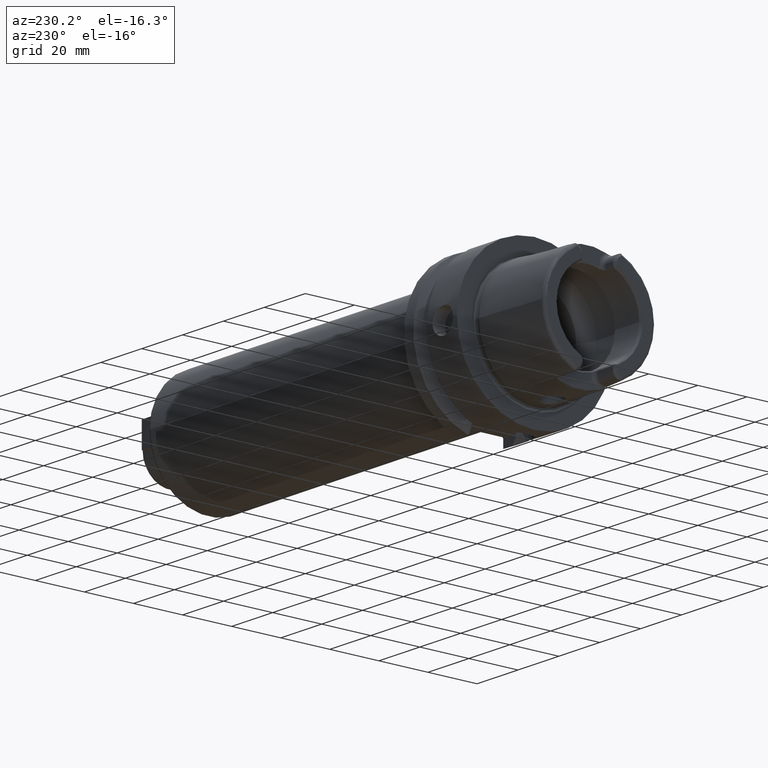
[diagram: clean part render]
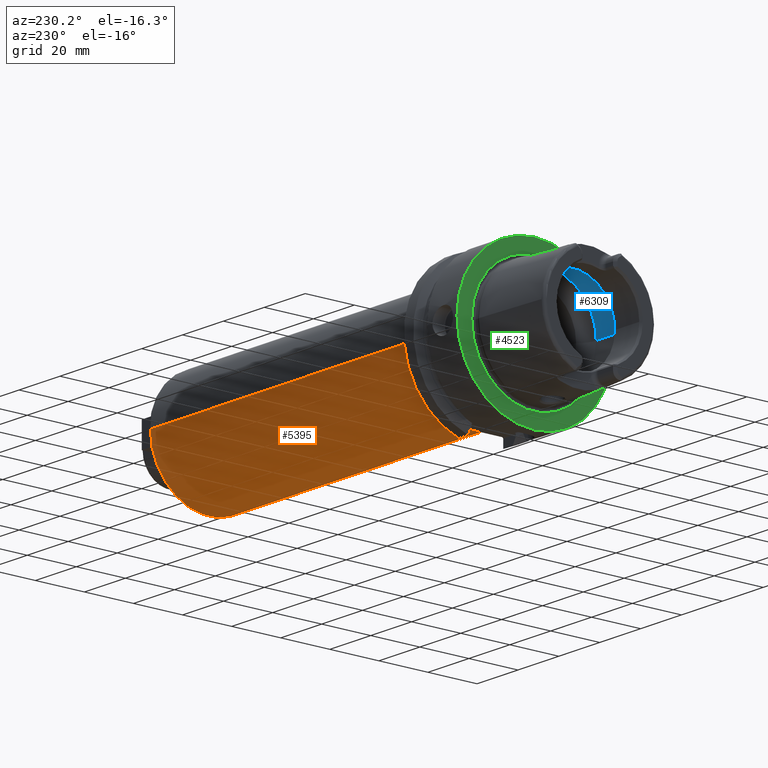
[diagram: same view with three faces highlighted in distinct colors, each labeled with its STEP entity id]
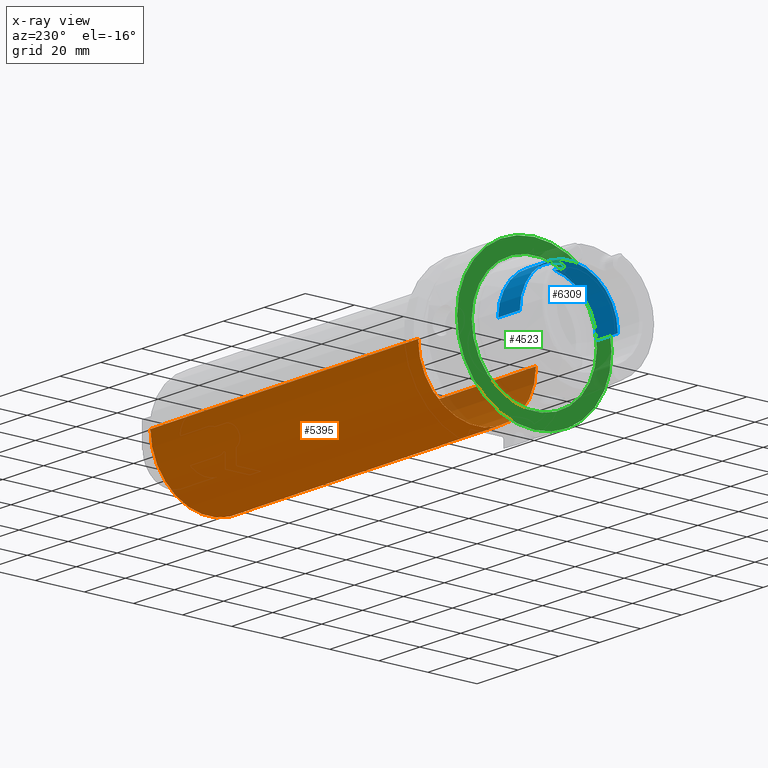
[diagram: x-ray of the same camera — body ghosted, the three highlighted faces saturated]
A machine part, auxiliary view with three faces highlighted in distinct colors.
The next image is the same camera in x-ray (body ghosted, the three faces saturated) — at least one of them is partly hidden behind the body in this view.
Their STEP definitions:

[orange] entity #5395 — the highlighted cylindrical surface (partial cylindrical patch) has radius 24 mm, axis along (1, 0, 0).
#1976=DIRECTION('',(-1.E0,0.E0,0.E0));
#1977=VECTOR('',#1976,1.31E2);
#1978=CARTESIAN_POINT('',(1.59E2,2.4E1,-7.702666112897E-14));
#1979=LINE('',#1978,#1977);
#1980=CARTESIAN_POINT('',(2.8E1,0.E0,0.E0));
#1981=DIRECTION('',(1.E0,0.E0,0.E0));
#1982=DIRECTION('',(0.E0,-1.E0,0.E0));
#1983=AXIS2_PLACEMENT_3D('',#1980,#1981,#1982);
#1985=DIRECTION('',(-1.E0,0.E0,0.E0));
#1986=VECTOR('',#1985,1.31E2);
#1987=CARTESIAN_POINT('',(1.59E2,-2.4E1,7.629255920826E-14));
#1988=LINE('',#1987,#1986);
#1989=CARTESIAN_POINT('',(1.59E2,0.E0,0.E0));
#1990=DIRECTION('',(-1.E0,0.E0,0.E0));
#1991=DIRECTION('',(0.E0,1.E0,0.E0));
#1992=AXIS2_PLACEMENT_3D('',#1989,#1990,#1991);
#3194=CARTESIAN_POINT('',(2.8E1,-2.4E1,0.E0));
#3195=CARTESIAN_POINT('',(2.8E1,2.4E1,0.E0));
#3196=VERTEX_POINT('',#3194);
#3197=VERTEX_POINT('',#3195);
#3198=CARTESIAN_POINT('',(1.59E2,2.4E1,-7.702666112897E-14));
#3199=VERTEX_POINT('',#3198);
#3200=CARTESIAN_POINT('',(1.59E2,-2.4E1,7.629255920826E-14));
#3201=VERTEX_POINT('',#3200);
#5383=CARTESIAN_POINT('',(1.835E1,0.E0,0.E0));
#5384=DIRECTION('',(1.E0,0.E0,0.E0));
#5385=DIRECTION('',(0.E0,-1.E0,0.E0));
#5386=AXIS2_PLACEMENT_3D('',#5383,#5384,#5385);
#5387=CYLINDRICAL_SURFACE('',#5386,2.4E1);
#5388=ORIENTED_EDGE('',*,*,#5373,.T.);
#5389=ORIENTED_EDGE('',*,*,#5348,.F.);
#5390=ORIENTED_EDGE('',*,*,#5377,.F.);
#5392=ORIENTED_EDGE('',*,*,#5391,.F.);
#5393=EDGE_LOOP('',(#5388,#5389,#5390,#5392));
#5394=FACE_OUTER_BOUND('',#5393,.F.);
#5395=ADVANCED_FACE('',(#5394),#5387,.T.);
#1984=CIRCLE('',#1983,2.4E1);
#1993=CIRCLE('',#1992,2.4E1);
#5348=EDGE_CURVE('',#3196,#3197,#1984,.T.);
#5373=EDGE_CURVE('',#3199,#3197,#1979,.T.);
#5377=EDGE_CURVE('',#3201,#3196,#1988,.T.);
#5391=EDGE_CURVE('',#3199,#3201,#1993,.T.);

[blue] entity #6309 — the highlighted cylindrical surface (partial cylindrical patch) has radius 20 mm, axis along (1, 0, 0).
#2372=CARTESIAN_POINT('',(-6.344997998398E0,2.648294615690E0,1.982388800484E1));
#2374=CARTESIAN_POINT('',(-6.344997998398E0,-2.648294615690E0,
1.982388800484E1));
#2389=CARTESIAN_POINT('',(-6.344997998398E0,2.648294615690E0,1.982388800484E1));
#2390=CARTESIAN_POINT('',(-6.460596585787E0,2.764185981810E0,1.980840595204E1));
#2391=CARTESIAN_POINT('',(-6.705032526468E0,2.979236620594E0,1.977762997767E1));
#2392=CARTESIAN_POINT('',(-7.115707088008E0,3.254820950558E0,1.973390915713E1));
#2393=CARTESIAN_POINT('',(-7.558788067840E0,3.473550756710E0,1.969635481023E1));
#2394=CARTESIAN_POINT('',(-8.021221245910E0,3.630990626018E0,1.966777323779E1));
#2395=CARTESIAN_POINT('',(-8.506803393416E0,3.728808889512E0,1.964936004927E1));
#2396=CARTESIAN_POINT('',(-9.030555145845E0,3.763361449459E0,1.964272649975E1));
#2397=CARTESIAN_POINT('',(-9.606429583869E0,3.716513314942E0,1.965172145674E1));
#2398=CARTESIAN_POINT('',(-1.018737071400E1,3.573599882894E0,1.967844261791E1));
#2399=CARTESIAN_POINT('',(-1.073043578591E1,3.344031986540E0,1.971908086237E1));
#2400=CARTESIAN_POINT('',(-1.122924164708E1,3.034476069484E0,1.976949853857E1));
#2401=CARTESIAN_POINT('',(-1.167539523054E1,2.649612593318E0,1.982521182701E1));
#2402=CARTESIAN_POINT('',(-1.205589435788E1,2.199789113726E0,1.988058991308E1));
#2403=CARTESIAN_POINT('',(-1.236037157112E1,1.698335126266E0,1.993006117584E1));
#2404=CARTESIAN_POINT('',(-1.258308722480E1,1.156984185320E0,1.996912477874E1));
#2405=CARTESIAN_POINT('',(-1.271933931783E1,5.855799559107E-1,
1.999421727083E1));
#2406=CARTESIAN_POINT('',(-1.275E1,1.970790591689E-1,2.E1));
#2407=CARTESIAN_POINT('',(-1.275E1,0.E0,2.E1));
#2409=CARTESIAN_POINT('',(-6.344997998398E0,0.E0,0.E0));
#2410=DIRECTION('',(1.E0,0.E0,0.E0));
#2411=DIRECTION('',(0.E0,1.E0,0.E0));
#2412=AXIS2_PLACEMENT_3D('',#2409,#2410,#2411);
#2414=CARTESIAN_POINT('',(-6.344997998398E0,0.E0,0.E0));
#2415=DIRECTION('',(1.E0,0.E0,0.E0));
#2416=DIRECTION('',(0.E0,-1.324147307845E-1,9.911944002421E-1));
#2417=AXIS2_PLACEMENT_3D('',#2414,#2415,#2416);
#2419=CARTESIAN_POINT('',(-1.275E1,0.E0,2.E1));
#2420=CARTESIAN_POINT('',(-1.275E1,-1.955242925513E-1,2.E1));
#2421=CARTESIAN_POINT('',(-1.271982051521E1,-5.810761079055E-1,
1.999430841785E1));
#2422=CARTESIAN_POINT('',(-1.258557303883E1,-1.148512219472E0,
1.996957850985E1));
#2423=CARTESIAN_POINT('',(-1.236610647030E1,-1.686465533352E0,
1.993104432949E1));
#2424=CARTESIAN_POINT('',(-1.206568486343E1,-2.185767805005E0,
1.988212273505E1));
#2425=CARTESIAN_POINT('',(-1.169008850873E1,-2.634407568635E0,
1.982723415069E1));
#2426=CARTESIAN_POINT('',(-1.124927195009E1,-3.019358385751E0,
1.977181562270E1));
#2427=CARTESIAN_POINT('',(-1.075709032709E1,-3.329824405020E0,
1.972149412598E1));
#2428=CARTESIAN_POINT('',(-1.021949126442E1,-3.562609701439E0,
1.968045031109E1));
#2429=CARTESIAN_POINT('',(-9.641467361370E0,-3.710631949485E0,
1.965284251435E1));
#2430=CARTESIAN_POINT('',(-9.064366496245E0,-3.763073985501E0,
1.964278184632E1));
#2431=CARTESIAN_POINT('',(-8.536701772833E0,-3.732854425270E0,
1.964858745769E1));
#2432=CARTESIAN_POINT('',(-8.044881233754E0,-3.637565201588E0,
1.966655458906E1));
#2433=CARTESIAN_POINT('',(-7.575563176507E0,-3.480761658208E0,
1.969508217317E1));
#2434=CARTESIAN_POINT('',(-7.126022383363E0,-3.261082066667E0,
1.973288259674E1));
#2435=CARTESIAN_POINT('',(-6.709667549471E0,-2.983130387452E0,
1.977705858332E1));
#2436=CARTESIAN_POINT('',(-6.462043566692E0,-2.765636627510E0,
1.980821215871E1));
#2437=CARTESIAN_POINT('',(-6.344997998398E0,-2.648294615690E0,
1.982388800484E1));
#2484=DIRECTION('',(-1.E0,0.E0,0.E0));
#2485=VECTOR('',#2484,1.057256643630E1);
#2486=CARTESIAN_POINT('',(-6.344997998398E0,-2.E1,0.E0));
#2487=LINE('',#2486,#2485);
#2488=DIRECTION('',(-1.E0,0.E0,0.E0));
#2489=VECTOR('',#2488,1.057256643630E1);
#2490=CARTESIAN_POINT('',(-6.344997998398E0,2.E1,0.E0));
#2491=LINE('',#2490,#2489);
#2723=CARTESIAN_POINT('',(-1.691756443470E1,0.E0,0.E0));
#2724=DIRECTION('',(1.E0,0.E0,0.E0));
#2725=DIRECTION('',(0.E0,1.E0,0.E0));
#2726=AXIS2_PLACEMENT_3D('',#2723,#2724,#2725);
#2788=CARTESIAN_POINT('',(-6.344997998398E0,2.E1,0.E0));
#2789=VERTEX_POINT('',#2788);
#2790=CARTESIAN_POINT('',(-1.691756443470E1,2.E1,0.E0));
#2791=VERTEX_POINT('',#2790);
#2800=CARTESIAN_POINT('',(-6.344997998398E0,-2.E1,0.E0));
#2801=VERTEX_POINT('',#2800);
#2802=CARTESIAN_POINT('',(-1.691756443470E1,-2.E1,0.E0));
#2803=VERTEX_POINT('',#2802);
#2970=VERTEX_POINT('',#2372);
#2971=VERTEX_POINT('',#2374);
#2972=VERTEX_POINT('',#2407);
#6292=CARTESIAN_POINT('',(-3.41E1,0.E0,0.E0));
#6293=DIRECTION('',(1.E0,0.E0,0.E0));
#6294=DIRECTION('',(0.E0,-1.E0,0.E0));
#6295=AXIS2_PLACEMENT_3D('',#6292,#6293,#6294);
#6296=CYLINDRICAL_SURFACE('',#6295,2.E1);
#6297=ORIENTED_EDGE('',*,*,#6251,.F.);
#6298=ORIENTED_EDGE('',*,*,#6287,.F.);
#6300=ORIENTED_EDGE('',*,*,#6299,.T.);
#6302=ORIENTED_EDGE('',*,*,#6301,.T.);
#6304=ORIENTED_EDGE('',*,*,#6303,.F.);
#6305=ORIENTED_EDGE('',*,*,#6279,.F.);
#6306=ORIENTED_EDGE('',*,*,#6013,.F.);
#6307=EDGE_LOOP('',(#6297,#6298,#6300,#6302,#6304,#6305,#6306));
#6308=FACE_OUTER_BOUND('',#6307,.F.);
#6309=ADVANCED_FACE('',(#6308),#6296,.F.);
#2408=B_SPLINE_CURVE_WITH_KNOTS('',3,(#2389,#2390,#2391,#2392,#2393,#2394,#2395,
#2396,#2397,#2398,#2399,#2400,#2401,#2402,#2403,#2404,#2405,#2406,#2407),
.UNSPECIFIED.,.F.,.F.,(4,1,1,1,1,1,1,1,1,1,1,1,1,1,1,1,4),(0.E0,6.25E-2,1.25E-1,
1.875E-1,2.5E-1,3.125E-1,3.75E-1,4.375E-1,5.E-1,5.625E-1,6.25E-1,6.875E-1,
7.5E-1,8.125E-1,8.75E-1,9.375E-1,1.E0),.UNSPECIFIED.);
#2413=CIRCLE('',#2412,2.E1);
#2418=CIRCLE('',#2417,2.E1);
#2438=B_SPLINE_CURVE_WITH_KNOTS('',3,(#2419,#2420,#2421,#2422,#2423,#2424,#2425,
#2426,#2427,#2428,#2429,#2430,#2431,#2432,#2433,#2434,#2435,#2436,#2437),
.UNSPECIFIED.,.F.,.F.,(4,1,1,1,1,1,1,1,1,1,1,1,1,1,1,1,4),(0.E0,6.25E-2,1.25E-1,
1.875E-1,2.5E-1,3.125E-1,3.75E-1,4.375E-1,5.E-1,5.625E-1,6.25E-1,6.875E-1,
7.5E-1,8.125E-1,8.75E-1,9.375E-1,1.E0),.UNSPECIFIED.);
#2727=CIRCLE('',#2726,2.E1);
#6013=EDGE_CURVE('',#2972,#2971,#2438,.T.);
#6251=EDGE_CURVE('',#2970,#2972,#2408,.T.);
#6279=EDGE_CURVE('',#2971,#2801,#2418,.T.);
#6287=EDGE_CURVE('',#2789,#2970,#2413,.T.);
#6299=EDGE_CURVE('',#2789,#2791,#2491,.T.);
#6301=EDGE_CURVE('',#2791,#2803,#2727,.T.);
#6303=EDGE_CURVE('',#2801,#2803,#2487,.T.);

[green] entity #4523 — the highlighted planar face has unit normal (1, 0, 0).
#1068=CARTESIAN_POINT('',(-1.421085471520E-14,0.E0,0.E0));
#1069=DIRECTION('',(1.E0,0.E0,0.E0));
#1070=DIRECTION('',(0.E0,1.E0,0.E0));
#1071=AXIS2_PLACEMENT_3D('',#1068,#1069,#1070);
#1073=CARTESIAN_POINT('',(-1.421085471520E-14,0.E0,0.E0));
#1074=DIRECTION('',(-1.E0,0.E0,0.E0));
#1075=DIRECTION('',(0.E0,1.E0,0.E0));
#1076=AXIS2_PLACEMENT_3D('',#1073,#1074,#1075);
#1078=CARTESIAN_POINT('',(0.E0,0.E0,0.E0));
#1079=DIRECTION('',(-1.E0,0.E0,0.E0));
#1080=DIRECTION('',(0.E0,-1.E0,0.E0));
#1081=AXIS2_PLACEMENT_3D('',#1078,#1079,#1080);
#1083=CARTESIAN_POINT('',(0.E0,0.E0,0.E0));
#1084=DIRECTION('',(-1.E0,0.E0,0.E0));
#1085=DIRECTION('',(0.E0,1.E0,0.E0));
#1086=AXIS2_PLACEMENT_3D('',#1083,#1084,#1085);
#2746=CARTESIAN_POINT('',(-1.421085471520E-14,3.15E1,0.E0));
#2747=CARTESIAN_POINT('',(-1.421085471520E-14,-3.15E1,0.E0));
#2748=VERTEX_POINT('',#2746);
#2749=VERTEX_POINT('',#2747);
#2774=CARTESIAN_POINT('',(0.E0,-2.549042414966E1,0.E0));
#2775=VERTEX_POINT('',#2774);
#2776=CARTESIAN_POINT('',(0.E0,2.549042414966E1,0.E0));
#2777=VERTEX_POINT('',#2776);
#4508=CARTESIAN_POINT('',(0.E0,0.E0,0.E0));
#4509=DIRECTION('',(1.E0,0.E0,0.E0));
#4510=DIRECTION('',(0.E0,-1.E0,0.E0));
#4511=AXIS2_PLACEMENT_3D('',#4508,#4509,#4510);
#4512=PLANE('',#4511);
#4514=ORIENTED_EDGE('',*,*,#4513,.T.);
#4516=ORIENTED_EDGE('',*,*,#4515,.F.);
#4517=EDGE_LOOP('',(#4514,#4516));
#4518=FACE_OUTER_BOUND('',#4517,.F.);
#4519=ORIENTED_EDGE('',*,*,#4503,.T.);
#4520=ORIENTED_EDGE('',*,*,#4487,.T.);
#4521=EDGE_LOOP('',(#4519,#4520));
#4522=FACE_BOUND('',#4521,.F.);
#4523=ADVANCED_FACE('',(#4518,#4522),#4512,.F.);
#1072=CIRCLE('',#1071,3.15E1);
#1077=CIRCLE('',#1076,3.15E1);
#1082=CIRCLE('',#1081,2.549042414966E1);
#1087=CIRCLE('',#1086,2.549042414966E1);
#4487=EDGE_CURVE('',#2777,#2775,#1087,.T.);
#4503=EDGE_CURVE('',#2775,#2777,#1082,.T.);
#4513=EDGE_CURVE('',#2748,#2749,#1072,.T.);
#4515=EDGE_CURVE('',#2748,#2749,#1077,.T.);